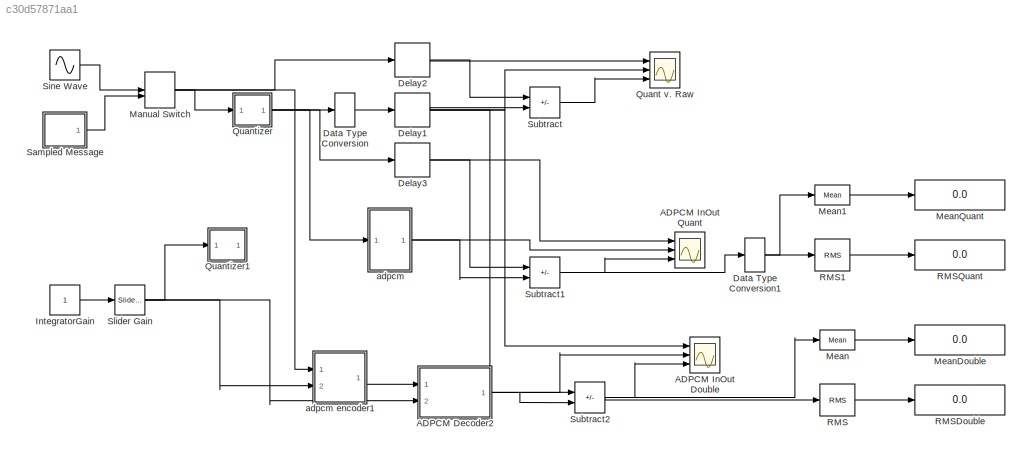
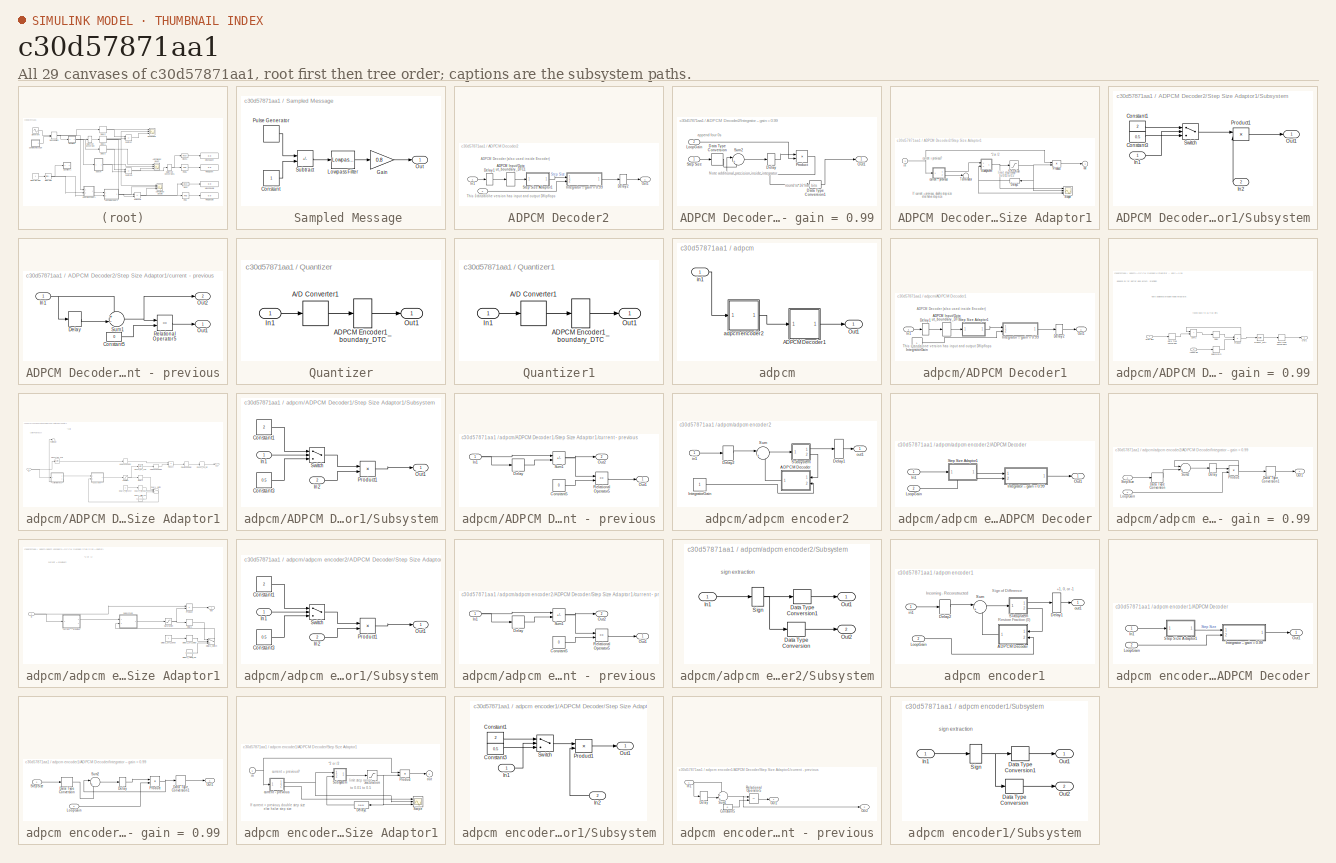
[diagram: thumbnail index - all 29 canvases of the model, root first then tree order]
MODEL slx_c30d57871aa1
KIND model
CONFIG AbsTol = auto
CONFIG EnableMultiTasking = off
CONFIG FixedStep = auto
CONFIG MaxStep = auto
CONFIG MinStep = auto
CONFIG RelTol = 1e-3
CONFIG SampleTimeConstraint = Unconstrained
CONFIG SolverName = VariableStepAuto
CONFIG StartTime = 0.0
CONFIG StopTime = 10.0
BLOCK [SubSystem]   Sampled Message
  Ports = [0, 1]
  RequestExecContextInheritance = off
BLOCK [Constant]   Sampled Message/Constant
  SampleTime = -1
BLOCK [Gain]   Sampled Message/Gain
  Gain = 0.8
  OutDataTypeStr = Inherit: Same as input
  ParamDataTypeStr = Inherit: Same as input
  SaturateOnIntegerOverflow = on
BLOCK [Reference]   Sampled Message/Lowpass Filter  REF=dspfdesign/Lowpass Filter
  Ports = [1, 1]
  SourceBlock = dspfdesign/Lowpass Filter
  SourceProductBaseCode = DS
  SourceType = dsp.LowpassFilter
BLOCK [Outport]   Sampled Message/Out
BLOCK [DiscretePulseGenerator]   Sampled Message/Pulse Generator
  Amplitude = 2
  Period = 2000
  Ports = [0, 1]
  PulseWidth = 1000
  SampleTime = 1/100000
BLOCK [Sum]   Sampled Message/Subtract
  IconShape = rectangular
  Inputs = +-
  Ports = [2, 1]
BLOCK [SubSystem] ADPCM Decoder2
  AncestorBlock = dspwvfmcdlib/ADPCM Decoder
  Ports = [2, 1]
  RequestExecContextInheritance = off
BLOCK [DataTypeConversion] ADPCM Decoder2/ADPCM Input//Output_boundary_DTC1
BLOCK [Delay] ADPCM Decoder2/Delay1
  DelayLength = 1
  InitialCondition = 0
  InputPortMap = u0
  Ports = [1, 1]
BLOCK [Delay] ADPCM Decoder2/Delay2
  DelayLength = 1
  InitialCondition = 0
  InputPortMap = u0
  InputProcessing = Columns as channels (frame based)
  Ports = [1, 1]
  UserDataPersistent = on
BLOCK [Inport] ADPCM Decoder2/In1
BLOCK [SubSystem] ADPCM Decoder2/Integrator -- gain = 0.99
  Ports = [2, 1]
  RequestExecContextInheritance = off
BLOCK [DataTypeConversion] ADPCM Decoder2/Integrator -- gain = 0.99/Data Type Conversion
  Commented = through
  OutDataTypeStr = fixdt(1,28,24)
  RndMeth = Nearest
  SaturateOnIntegerOverflow = off
BLOCK [DataTypeConversion] ADPCM Decoder2/Integrator -- gain = 0.99/Data Type Conversion1
  RndMeth = Nearest
  SaturateOnIntegerOverflow = off
BLOCK [Delay] ADPCM Decoder2/Integrator -- gain = 0.99/Delay
  DelayLength = 1
  InitialCondition = 0
  InputPortMap = u0
  InputProcessing = Columns as channels (frame based)
  Ports = [1, 1]
  UserDataPersistent = on
BLOCK [Inport] ADPCM Decoder2/Integrator -- gain = 0.99/LoopGain
  Port = 2
BLOCK [Outport] ADPCM Decoder2/Integrator -- gain = 0.99/Out1
BLOCK [Product] ADPCM Decoder2/Integrator -- gain = 0.99/Product
  OutDataTypeStr = Inherit: Same as first input
  Ports = [2, 1]
BLOCK [Inport] ADPCM Decoder2/Integrator -- gain = 0.99/Step Size
BLOCK [Sum] ADPCM Decoder2/Integrator -- gain = 0.99/Sum2
  AccumDataTypeStr = Inherit: Same as first input
  InputSameDT = on
  Inputs = |++
  OutDataTypeStr = Inherit: Same as first input
  Ports = [2, 1]
  SaturateOnIntegerOverflow = on
BLOCK [Inport] ADPCM Decoder2/LoopGain
  Port = 2
BLOCK [Outport] ADPCM Decoder2/Out1
BLOCK [SubSystem] ADPCM Decoder2/Step Size Adaptor1
  Ports = [1, 1]
  RequestExecContextInheritance = off
  ShowPortLabels = none
BLOCK [Delay] ADPCM Decoder2/Step Size Adaptor1/Delay1
  DelayLength = 1
  InitialCondition = 13/128
  InputPortMap = u0
  InputProcessing = Columns as channels (frame based)
  NameLocation = top
  Ports = [1, 1]
  UserDataPersistent = on
BLOCK [Product] ADPCM Decoder2/Step Size Adaptor1/Product
  InputSameDT = on
  OutDataTypeStr = Inherit: Same as first input
  Ports = [2, 1]
  RndMeth = Convergent
  SaturateOnIntegerOverflow = on
BLOCK [Saturate] ADPCM Decoder2/Step Size Adaptor1/Saturation
  LowerLimit = 328/65536
  UpperLimit = MaxStep
BLOCK [Scope] ADPCM Decoder2/Step Size Adaptor1/Scope
  Floating = off
  NumInputPorts = 3
  Ports = [3]
  ScopeSpecificationString = Simulink.scopes.TimeScopeBlockCfg('CurrentConfiguration', extmgr.ConfigurationSet(extmgr.Configuration('Core','General UI',true),extmgr.Configuration('Core','Source UI',true),extmgr.Configuration('Sources','WiredSimulink',true,'DataLoggingVariableName','ScopeData1'),extmgr.Configuration('Visuals','Time Domain',true,'SerializedDisplays',{struct('MinYLimReal','-2.5','MaxYLimReal','2.5','YLabelReal',...<+1466ch>
BLOCK [SubSystem] ADPCM Decoder2/Step Size Adaptor1/Subsystem
  Ports = [2, 1]
  RequestExecContextInheritance = off
BLOCK [Constant] ADPCM Decoder2/Step Size Adaptor1/Subsystem/Constant1
  OutDataTypeStr = Inherit: Inherit via back propagation
  SampleTime = -1
  Value = 2
BLOCK [Constant] ADPCM Decoder2/Step Size Adaptor1/Subsystem/Constant3
  OutDataTypeStr = Inherit: Inherit via back propagation
  SampleTime = -1
  Value = 0.5
BLOCK [Inport] ADPCM Decoder2/Step Size Adaptor1/Subsystem/In1
BLOCK [Inport] ADPCM Decoder2/Step Size Adaptor1/Subsystem/In2
  Port = 2
BLOCK [Outport] ADPCM Decoder2/Step Size Adaptor1/Subsystem/Out1
BLOCK [Product] ADPCM Decoder2/Step Size Adaptor1/Subsystem/Product1
  InputSameDT = on
  OutDataTypeStr = Inherit: Same as first input
  Ports = [2, 1]
  RndMeth = Zero
  SaturateOnIntegerOverflow = on
BLOCK [Switch] ADPCM Decoder2/Step Size Adaptor1/Subsystem/Switch
  Threshold = 1
BLOCK [Terminator] ADPCM Decoder2/Step Size Adaptor1/Terminator
BLOCK [SubSystem] ADPCM Decoder2/Step Size Adaptor1/current - previous
  Ports = [1, 2]
  RequestExecContextInheritance = off
BLOCK [Constant] ADPCM Decoder2/Step Size Adaptor1/current - previous/Constant5
  OutDataTypeStr = double
  SampleTime = 1/100000
  Value = 0
BLOCK [Delay] ADPCM Decoder2/Step Size Adaptor1/current - previous/Delay
  DelayLength = 1
  InitialCondition = 0
  InputPortMap = u0
  InputProcessing = Columns as channels (frame based)
  Ports = [1, 1]
  UserDataPersistent = on
BLOCK [Inport] ADPCM Decoder2/Step Size Adaptor1/current - previous/In1
BLOCK [Outport] ADPCM Decoder2/Step Size Adaptor1/current - previous/Out1
BLOCK [Outport] ADPCM Decoder2/Step Size Adaptor1/current - previous/Out2
  Port = 2
BLOCK [RelationalOperator] ADPCM Decoder2/Step Size Adaptor1/current - previous/Relational Operator5
  Operator = ==
  OutDataTypeStr = boolean
  Ports = [2, 1]
BLOCK [Sum] ADPCM Decoder2/Step Size Adaptor1/current - previous/Sum1
  AccumDataTypeStr = Inherit: Same as first input
  InputSameDT = on
  Inputs = +-|
  OutDataTypeStr = Inherit: Same as first input
  Ports = [2, 1]
  SaturateOnIntegerOverflow = on
BLOCK [Inport] ADPCM Decoder2/Step Size Adaptor1/in
BLOCK [Outport] ADPCM Decoder2/Step Size Adaptor1/out
  InitialOutput = 0
BLOCK [Scope] ADPCM InOut Double
  Floating = off
  NumInputPorts = 3
  Ports = [3]
  ScopeSpecificationString = Simulink.scopes.TimeScopeBlockCfg('CurrentConfiguration', extmgr.ConfigurationSet(extmgr.Configuration('Core','General UI',true),extmgr.Configuration('Core','Source UI',true),extmgr.Configuration('Sources','WiredSimulink',true,'DataLoggingLimitDataPoints',true,'DataLoggingSaveFormat','Array','DataLoggingDecimation','1','DataLoggingDecimateData',true,'DataLoggingVariableName','ScopeData2'),extmgr.C...<+3025ch>
BLOCK [Scope] ADPCM InOut Quant
  Floating = off
  NumInputPorts = 3
  Ports = [3]
  ScopeSpecificationString = Simulink.scopes.TimeScopeBlockCfg('CurrentConfiguration', extmgr.ConfigurationSet(extmgr.Configuration('Core','General UI',true),extmgr.Configuration('Core','Source UI',true),extmgr.Configuration('Sources','WiredSimulink',true,'DataLoggingLimitDataPoints',true,'DataLoggingSaveFormat','Array','DataLoggingDecimation','1','DataLoggingDecimateData',true,'DataLoggingVariableName','ScopeData1'),extmgr.C...<+3008ch>
BLOCK [DataTypeConversion] Data Type Conversion
  OutDataTypeStr = double
  RndMeth = Floor
  SaturateOnIntegerOverflow = off
BLOCK [DataTypeConversion] Data Type Conversion1
  OutDataTypeStr = double
  RndMeth = Floor
  SaturateOnIntegerOverflow = off
BLOCK [Delay] Delay1
  DelayLength = 4
  InitialCondition = 0
  InputPortMap = u0
  Ports = [1, 1]
BLOCK [Delay] Delay2
  DelayLength = 4
  InitialCondition = 0
  InputPortMap = u0
  Ports = [1, 1]
BLOCK [Delay] Delay3
  DelayLength = 4
  InitialCondition = 0
  InputPortMap = u0
  Ports = [1, 1]
BLOCK [Constant] IntegratorGain
  SampleTime = -1
BLOCK [ManualSwitch] Manual Switch
BLOCK [Reference] Mean  REF=dspstat3/Mean
  Ports = [1, 1]
  SourceBlock = dspstat3/Mean
  SourceProductBaseCode = DS
  SourceType = Mean
  UserDataPersistent = on
BLOCK [Reference] Mean1  REF=dspstat3/Mean
  Ports = [1, 1]
  SourceBlock = dspstat3/Mean
  SourceProductBaseCode = DS
  SourceType = Mean
  UserDataPersistent = on
BLOCK [Display] MeanDouble
  Decimation = 1
  Ports = [1]
BLOCK [Display] MeanQuant
  Decimation = 1
  Ports = [1]
BLOCK [Scope] Quant v. Raw
  Floating = off
  NumInputPorts = 3
  Ports = [3]
  ScopeSpecificationString = Simulink.scopes.TimeScopeBlockCfg('CurrentConfiguration', extmgr.ConfigurationSet(extmgr.Configuration('Core','General UI',true),extmgr.Configuration('Core','Source UI',true),extmgr.Configuration('Sources','WiredSimulink',true,'DataLoggingLimitDataPoints',true,'DataLoggingSaveFormat','Array','DataLoggingDecimation','1','DataLoggingDecimateData',true),extmgr.Configuration('Visuals','Time Domain',tr...<+3003ch>
BLOCK [SubSystem] Quantizer
  Ports = [1, 1]
  RequestExecContextInheritance = off
BLOCK [ZeroOrderHold] Quantizer/A//D Converter1
  Commented = through
  SampleTime = 1/10000
BLOCK [DataTypeConversion] Quantizer/ADPCM Encoder1_boundary_DTC
  OutDataTypeStr = fixdt(1,16,12)
  RndMeth = Round
BLOCK [Inport] Quantizer/In1
BLOCK [Outport] Quantizer/Out1
BLOCK [SubSystem] Quantizer1
  Ports = [1, 1]
  RequestExecContextInheritance = off
BLOCK [ZeroOrderHold] Quantizer1/A//D Converter1
  Commented = through
  SampleTime = 1/10000
BLOCK [DataTypeConversion] Quantizer1/ADPCM Encoder1_boundary_DTC
  OutDataTypeStr = fixdt(1,8,4)
  RndMeth = Round
BLOCK [Inport] Quantizer1/In1
BLOCK [Outport] Quantizer1/Out1
BLOCK [Reference] RMS  REF=dspstat3/RMS
  Ports = [1, 1]
  SourceBlock = dspstat3/RMS
  SourceProductBaseCode = DS
  SourceType = RMS
  UserDataPersistent = on
BLOCK [Reference] RMS1  REF=dspstat3/RMS
  Ports = [1, 1]
  SourceBlock = dspstat3/RMS
  SourceProductBaseCode = DS
  SourceType = RMS
  UserDataPersistent = on
BLOCK [Display] RMSDouble
  Decimation = 1
  Ports = [1]
BLOCK [Display] RMSQuant
  Decimation = 1
  Ports = [1]
BLOCK [Sin] Sine Wave
  Ports = [0, 1]
  SampleTime = 1/100000
  Samples = 1000
  SineType = Sample based
BLOCK [Reference] Slider Gain  REF=simulink/Math
Operations/Slider
Gain
  Ports = [1, 1]
  SourceBlock = simulink/Math\nOperations/Slider\nGain
  SourceProductBaseCode = SL
  SourceType = Slider Gain
BLOCK [Sum] Subtract
  IconShape = rectangular
  Inputs = +-
  Ports = [2, 1]
BLOCK [Sum] Subtract1
  IconShape = rectangular
  Inputs = +-
  Ports = [2, 1]
BLOCK [Sum] Subtract2
  IconShape = rectangular
  Inputs = +-
  Ports = [2, 1]
BLOCK [SubSystem] adpcm
  Ports = [1, 1]
  RequestExecContextInheritance = off
BLOCK [SubSystem] adpcm encoder1
  Ports = [2, 1]
  RequestExecContextInheritance = off
BLOCK [SubSystem] adpcm encoder1/ADPCM Decoder
  AncestorBlock = dspwvfmcdlib/ADPCM Decoder
  Ports = [2, 1]
  RequestExecContextInheritance = off
BLOCK [Inport] adpcm encoder1/ADPCM Decoder/In1
BLOCK [SubSystem] adpcm encoder1/ADPCM Decoder/Integrator -- gain = 0.99
  Ports = [2, 1]
  RequestExecContextInheritance = off
BLOCK [DataTypeConversion] adpcm encoder1/ADPCM Decoder/Integrator -- gain = 0.99/Data Type Conversion
  Commented = through
  OutDataTypeStr = fixdt(1,28,24)
  RndMeth = Nearest
  SaturateOnIntegerOverflow = off
BLOCK [DataTypeConversion] adpcm encoder1/ADPCM Decoder/Integrator -- gain = 0.99/Data Type Conversion1
  RndMeth = Convergent
  SaturateOnIntegerOverflow = off
BLOCK [Delay] adpcm encoder1/ADPCM Decoder/Integrator -- gain = 0.99/Delay
  DelayLength = 1
  InitialCondition = 0
  InputPortMap = u0
  InputProcessing = Columns as channels (frame based)
  Ports = [1, 1]
  UserDataPersistent = on
BLOCK [Inport] adpcm encoder1/ADPCM Decoder/Integrator -- gain = 0.99/LoopGain
  Port = 2
BLOCK [Outport] adpcm encoder1/ADPCM Decoder/Integrator -- gain = 0.99/Out1
BLOCK [Product] adpcm encoder1/ADPCM Decoder/Integrator -- gain = 0.99/Product
  OutDataTypeStr = Inherit: Same as first input
  Ports = [2, 1]
  RndMeth = Convergent
BLOCK [Inport] adpcm encoder1/ADPCM Decoder/Integrator -- gain = 0.99/StepSize
BLOCK [Sum] adpcm encoder1/ADPCM Decoder/Integrator -- gain = 0.99/Sum2
  AccumDataTypeStr = Inherit: Same as first input
  InputSameDT = on
  Inputs = |++
  OutDataTypeStr = Inherit: Same as first input
  Ports = [2, 1]
  SaturateOnIntegerOverflow = on
BLOCK [Inport] adpcm encoder1/ADPCM Decoder/LoopGain
  Port = 2
BLOCK [Outport] adpcm encoder1/ADPCM Decoder/Out1
BLOCK [SubSystem] adpcm encoder1/ADPCM Decoder/Step Size Adaptor1
  Ports = [1, 1]
  RequestExecContextInheritance = off
  ShowPortLabels = none
BLOCK [Delay] adpcm encoder1/ADPCM Decoder/Step Size Adaptor1/Delay1
  DelayLength = 1
  InitialCondition = 13/128
  InputPortMap = u0
  InputProcessing = Columns as channels (frame based)
  NameLocation = top
  Ports = [1, 1]
  UserDataPersistent = on
BLOCK [Product] adpcm encoder1/ADPCM Decoder/Step Size Adaptor1/Product
  InputSameDT = on
  OutDataTypeStr = double
  Ports = [2, 1]
  RndMeth = Convergent
  SaturateOnIntegerOverflow = on
BLOCK [Saturate] adpcm encoder1/ADPCM Decoder/Step Size Adaptor1/Saturation
  LinearizeAsGain = off
  LowerLimit = 328/65536
BLOCK [Scope] adpcm encoder1/ADPCM Decoder/Step Size Adaptor1/Scope
  Commented = on
  Floating = off
  NumInputPorts = 3
  Ports = [3]
  ScopeSpecificationString = Simulink.scopes.TimeScopeBlockCfg('CurrentConfiguration', extmgr.ConfigurationSet(extmgr.Configuration('Core','General UI',true),extmgr.Configuration('Core','Source UI',true),extmgr.Configuration('Sources','WiredSimulink',true,'DataLoggingVariableName','ScopeData1'),extmgr.Configuration('Visuals','Time Domain',true,'SerializedDisplays',{struct('MinYLimReal','-2.5','MaxYLimReal','2.5','YLabelReal',...<+1491ch>
BLOCK [SubSystem] adpcm encoder1/ADPCM Decoder/Step Size Adaptor1/Subsystem
  Ports = [2, 1]
  RequestExecContextInheritance = off
BLOCK [Constant] adpcm encoder1/ADPCM Decoder/Step Size Adaptor1/Subsystem/Constant1
  OutDataTypeStr = Inherit: Inherit via back propagation
  SampleTime = -1
  Value = 2
BLOCK [Constant] adpcm encoder1/ADPCM Decoder/Step Size Adaptor1/Subsystem/Constant3
  OutDataTypeStr = Inherit: Inherit via back propagation
  SampleTime = -1
  Value = 0.5
BLOCK [Inport] adpcm encoder1/ADPCM Decoder/Step Size Adaptor1/Subsystem/In1
BLOCK [Inport] adpcm encoder1/ADPCM Decoder/Step Size Adaptor1/Subsystem/In2
  Port = 2
BLOCK [Outport] adpcm encoder1/ADPCM Decoder/Step Size Adaptor1/Subsystem/Out1
BLOCK [Product] adpcm encoder1/ADPCM Decoder/Step Size Adaptor1/Subsystem/Product1
  InputSameDT = on
  OutDataTypeStr = Inherit: Same as first input
  Ports = [2, 1]
  RndMeth = Zero
  SaturateOnIntegerOverflow = on
BLOCK [Switch] adpcm encoder1/ADPCM Decoder/Step Size Adaptor1/Subsystem/Switch
  Threshold = 1
BLOCK [SubSystem] adpcm encoder1/ADPCM Decoder/Step Size Adaptor1/current - previous
  Ports = [1, 2]
  RequestExecContextInheritance = off
BLOCK [Constant] adpcm encoder1/ADPCM Decoder/Step Size Adaptor1/current - previous/Constant5
  OutDataTypeStr = double
  SampleTime = -1
  Value = 0
BLOCK [Delay] adpcm encoder1/ADPCM Decoder/Step Size Adaptor1/current - previous/Delay
  DelayLength = 1
  InitialCondition = 0
  InputPortMap = u0
  InputProcessing = Columns as channels (frame based)
  Ports = [1, 1]
  UserDataPersistent = on
BLOCK [Inport] adpcm encoder1/ADPCM Decoder/Step Size Adaptor1/current - previous/In1
BLOCK [Outport] adpcm encoder1/ADPCM Decoder/Step Size Adaptor1/current - previous/Out1
BLOCK [Outport] adpcm encoder1/ADPCM Decoder/Step Size Adaptor1/current - previous/Out2
  Port = 2
BLOCK [RelationalOperator] adpcm encoder1/ADPCM Decoder/Step Size Adaptor1/current - previous/Relational Operator5
  Operator = ==
  OutDataTypeStr = boolean
  Ports = [2, 1]
BLOCK [Sum] adpcm encoder1/ADPCM Decoder/Step Size Adaptor1/current - previous/Sum1
  AccumDataTypeStr = double
  InputSameDT = on
  Inputs = +-|
  OutDataTypeStr = Inherit: Same as first input
  Ports = [2, 1]
  SaturateOnIntegerOverflow = on
BLOCK [Inport] adpcm encoder1/ADPCM Decoder/Step Size Adaptor1/in
BLOCK [Outport] adpcm encoder1/ADPCM Decoder/Step Size Adaptor1/out
  InitialOutput = 0
BLOCK [Delay] adpcm encoder1/Delay1
  DelayLength = 1
  InitialCondition = 0
  InputPortMap = u0
  Ports = [1, 1]
BLOCK [Delay] adpcm encoder1/Delay2
  DelayLength = 1
  InitialCondition = 0
  InputPortMap = u0
  Ports = [1, 1]
BLOCK [Inport] adpcm encoder1/LoopGain
  Port = 2
BLOCK [SubSystem] adpcm encoder1/Subsystem
  Ports = [1, 2]
  RequestExecContextInheritance = off
BLOCK [DataTypeConversion] adpcm encoder1/Subsystem/Data Type Conversion
  LockScale = on
  OutDataTypeStr = double
  RndMeth = Nearest
BLOCK [DataTypeConversion] adpcm encoder1/Subsystem/Data Type Conversion1
  LockScale = on
  OutDataTypeStr = fixdt(1,2,0)
  RndMeth = Nearest
BLOCK [Inport] adpcm encoder1/Subsystem/In1
BLOCK [Outport] adpcm encoder1/Subsystem/Out1
BLOCK [Outport] adpcm encoder1/Subsystem/Out2
  Port = 2
BLOCK [Signum] adpcm encoder1/Subsystem/Sign
  ZeroCross = off
BLOCK [Sum] adpcm encoder1/Sum
  InputSameDT = on
  Inputs = |+-
  OutDataTypeStr = Inherit: Same as first input
  Ports = [2, 1]
  SaturateOnIntegerOverflow = on
BLOCK [Inport] adpcm encoder1/in1
BLOCK [Outport] adpcm encoder1/out1
BLOCK [SubSystem] adpcm/ADPCM Decoder1
  Ports = [1, 1]
  RequestExecContextInheritance = off
BLOCK [DataTypeConversion] adpcm/ADPCM Decoder1/ADPCM Input//Output_boundary_DTC1
BLOCK [Delay] adpcm/ADPCM Decoder1/Delay1
  InitialCondition = 0
  InputPortMap = u0
  Ports = [1, 1]
BLOCK [Delay] adpcm/ADPCM Decoder1/Delay2
  InitialCondition = 0
  InputPortMap = u0
  InputProcessing = Columns as channels (frame based)
  Ports = [1, 1]
  UserDataPersistent = on
BLOCK [Inport] adpcm/ADPCM Decoder1/In1
  OutDataTypeStr = fixdt(1, 2, 0)
  PortDimensions = 1
  SampleTime = 1e-05
BLOCK [SubSystem] adpcm/ADPCM Decoder1/Integrator -- gain = 0.99
  Ports = [2, 1]
  RequestExecContextInheritance = off
BLOCK [DataTypeConversion] adpcm/ADPCM Decoder1/Integrator -- gain = 0.99/Data Type Conversion
  OutDataTypeStr = fixdt(1, 20, 16)
  RndMeth = Nearest
  SampleTime = 1e-05
  SaturateOnIntegerOverflow = off
BLOCK [DataTypeConversion] adpcm/ADPCM Decoder1/Integrator -- gain = 0.99/Data Type Conversion1
  OutDataTypeStr = fixdt(1, 16, 12)
  RndMeth = Nearest
  SampleTime = 1e-05
  SaturateOnIntegerOverflow = off
BLOCK [Delay] adpcm/ADPCM Decoder1/Integrator -- gain = 0.99/Delay
  DelayLength = double(1)
  InitialCondition = 0
  InputPortMap = u0
  Ports = [1, 1]
  SampleTime = 1e-05
BLOCK [Inport] adpcm/ADPCM Decoder1/Integrator -- gain = 0.99/LoopGain
  OutDataTypeStr = fixdt(1, 20, 16)
  Port = 2
  PortDimensions = 1
  SampleTime = 1e-05
BLOCK [Outport] adpcm/ADPCM Decoder1/Integrator -- gain = 0.99/Out1
  SampleTime = 1e-05
BLOCK [Product] adpcm/ADPCM Decoder1/Integrator -- gain = 0.99/Product
  Inputs = **
  OutDataTypeStr = fixdt(1, 20, 16)
  Ports = [2, 1]
  RndMeth = Nearest
  SampleTime = 1e-05
BLOCK [Reference] adpcm/ADPCM Decoder1/Integrator -- gain = 0.99/Product_out1  REF=hdlmdlgenlib/Buffer
  Ports = [1, 1]
  SourceBlock = hdlmdlgenlib/Buffer
  SourceProductBaseCode = SL
  SourceType = Buffer/Wire
BLOCK [Inport] adpcm/ADPCM Decoder1/Integrator -- gain = 0.99/Step Size
  OutDataTypeStr = fixdt(1, 16, 12)
  PortDimensions = 1
  SampleTime = 1e-05
BLOCK [Sum] adpcm/ADPCM Decoder1/Integrator -- gain = 0.99/Sum2
  AccumDataTypeStr = fixdt(1, 20, 16)
  IconShape = rectangular
  OutDataTypeStr = fixdt(1, 20, 16)
  Ports = [2, 1]
  SampleTime = 1e-05
  SaturateOnIntegerOverflow = on
BLOCK [Delay] adpcm/ADPCM Decoder1/Integrator -- gain = 0.99/delayMatch
  DelayLength = double(2)
  InitialCondition = 0
  InputPortMap = u0
  Ports = [1, 1]
  SampleTime = 1e-05
BLOCK [Constant] adpcm/ADPCM Decoder1/IntegratorGain
  OutDataTypeStr = fixdt(1,20,16)
  SampleTime = -1
BLOCK [Outport] adpcm/ADPCM Decoder1/Out1
  SampleTime = 1e-05
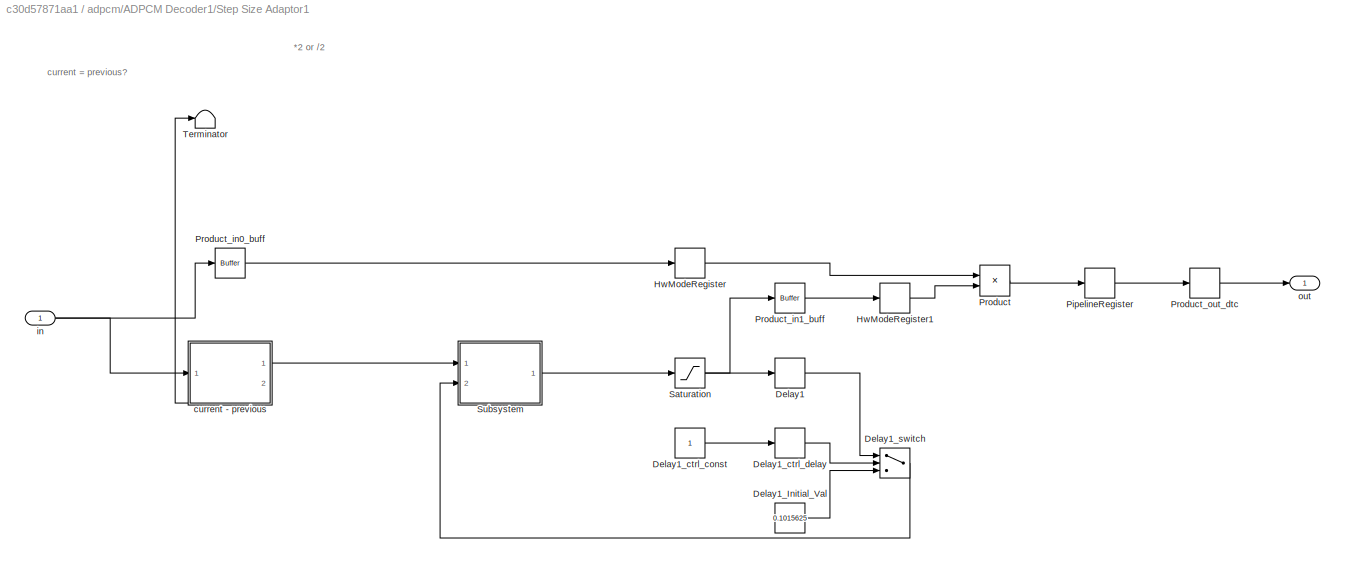
BLOCK [SubSystem] adpcm/ADPCM Decoder1/Step Size Adaptor1
  Ports = [1, 1]
  RequestExecContextInheritance = off
BLOCK [Delay] adpcm/ADPCM Decoder1/Step Size Adaptor1/Delay1
  DelayLength = double(1)
  InitialCondition = 0
  InputPortMap = u0
  Ports = [1, 1]
  SampleTime = 1e-05
BLOCK [Constant] adpcm/ADPCM Decoder1/Step Size Adaptor1/Delay1_Initial_Val
  OutDataTypeStr = fixdt(1, 16, 12)
  SampleTime = 1e-05
  Value = 0.1015625
BLOCK [Constant] adpcm/ADPCM Decoder1/Step Size Adaptor1/Delay1_ctrl_const
  OutDataTypeStr = boolean
  SampleTime = 1e-05
BLOCK [Delay] adpcm/ADPCM Decoder1/Step Size Adaptor1/Delay1_ctrl_delay
  DelayLength = double(1)
  InitialCondition = 0
  InputPortMap = u0
  Ports = [1, 1]
  SampleTime = 1e-05
BLOCK [Switch] adpcm/ADPCM Decoder1/Step Size Adaptor1/Delay1_switch
  Criteria = u2 ~= 0
  InputSameDT = off
  OutDataTypeStr = fixdt(1, 16, 12)
  SampleTime = 1e-05
  SaturateOnIntegerOverflow = off
  Threshold = double(0)
BLOCK [Delay] adpcm/ADPCM Decoder1/Step Size Adaptor1/HwModeRegister
  DelayLength = double(1)
  InitialCondition = 0
  InputPortMap = u0
  Ports = [1, 1]
  SampleTime = 1e-05
BLOCK [Delay] adpcm/ADPCM Decoder1/Step Size Adaptor1/HwModeRegister1
  DelayLength = double(1)
  InitialCondition = 0
  InputPortMap = u0
  Ports = [1, 1]
  SampleTime = 1e-05
BLOCK [Delay] adpcm/ADPCM Decoder1/Step Size Adaptor1/PipelineRegister
  DelayLength = double(1)
  InitialCondition = 0
  InputPortMap = u0
  Ports = [1, 1]
  SampleTime = 1e-05
BLOCK [Product] adpcm/ADPCM Decoder1/Step Size Adaptor1/Product
  Inputs = **
  OutDataTypeStr = fixdt(1, 32, 24)
  Ports = [2, 1]
  SampleTime = 1e-05
BLOCK [Reference] adpcm/ADPCM Decoder1/Step Size Adaptor1/Product_in0_buff  REF=hdlmdlgenlib/Buffer
  Ports = [1, 1]
  SourceBlock = hdlmdlgenlib/Buffer
  SourceProductBaseCode = SL
  SourceType = Buffer/Wire
BLOCK [Reference] adpcm/ADPCM Decoder1/Step Size Adaptor1/Product_in1_buff  REF=hdlmdlgenlib/Buffer
  Ports = [1, 1]
  SourceBlock = hdlmdlgenlib/Buffer
  SourceProductBaseCode = SL
  SourceType = Buffer/Wire
BLOCK [DataTypeConversion] adpcm/ADPCM Decoder1/Step Size Adaptor1/Product_out_dtc
  OutDataTypeStr = fixdt(1, 16, 12)
  RndMeth = Convergent
  SampleTime = 1e-05
BLOCK [Saturate] adpcm/ADPCM Decoder1/Step Size Adaptor1/Saturation
  LowerLimit = fi(0,1,16,12,"hex","0015")
  OutDataTypeStr = fixdt(1, 16, 12)
  SampleTime = 1e-05
  UpperLimit = fi(0,1,16,12,"hex","0800")
BLOCK [SubSystem] adpcm/ADPCM Decoder1/Step Size Adaptor1/Subsystem
  Ports = [2, 1]
  RequestExecContextInheritance = off
BLOCK [Constant] adpcm/ADPCM Decoder1/Step Size Adaptor1/Subsystem/Constant1
  OutDataTypeStr = fixdt(1, 16, 12)
  SampleTime = 1e-05
  Value = 2
BLOCK [Constant] adpcm/ADPCM Decoder1/Step Size Adaptor1/Subsystem/Constant3
  OutDataTypeStr = fixdt(1, 16, 12)
  SampleTime = 1e-05
  Value = 0.5
BLOCK [Inport] adpcm/ADPCM Decoder1/Step Size Adaptor1/Subsystem/In1
  OutDataTypeStr = boolean
  PortDimensions = 1
  SampleTime = 1e-05
BLOCK [Inport] adpcm/ADPCM Decoder1/Step Size Adaptor1/Subsystem/In2
  OutDataTypeStr = fixdt(1, 16, 12)
  Port = 2
  PortDimensions = 1
  SampleTime = 1e-05
BLOCK [Outport] adpcm/ADPCM Decoder1/Step Size Adaptor1/Subsystem/Out1
  SampleTime = 1e-05
BLOCK [Product] adpcm/ADPCM Decoder1/Step Size Adaptor1/Subsystem/Product1
  Inputs = **
  OutDataTypeStr = fixdt(1, 16, 12)
  Ports = [2, 1]
  RndMeth = Zero
  SampleTime = 1e-05
  SaturateOnIntegerOverflow = on
BLOCK [Switch] adpcm/ADPCM Decoder1/Step Size Adaptor1/Subsystem/Switch
  InputSameDT = off
  OutDataTypeStr = fixdt(1, 16, 12)
  SampleTime = 1e-05
  Threshold = double(1)
BLOCK [Terminator] adpcm/ADPCM Decoder1/Step Size Adaptor1/Terminator
BLOCK [SubSystem] adpcm/ADPCM Decoder1/Step Size Adaptor1/current - previous
  Ports = [1, 2]
  RequestExecContextInheritance = off
BLOCK [Constant] adpcm/ADPCM Decoder1/Step Size Adaptor1/current - previous/Constant5
  OutDataTypeStr = fixdt(1, 16, 12)
  SampleTime = 1e-05
  Value = 0
BLOCK [Delay] adpcm/ADPCM Decoder1/Step Size Adaptor1/current - previous/Delay
  DelayLength = double(1)
  InitialCondition = 0
  InputPortMap = u0
  Ports = [1, 1]
  SampleTime = 1e-05
BLOCK [Inport] adpcm/ADPCM Decoder1/Step Size Adaptor1/current - previous/In1
  OutDataTypeStr = fixdt(1, 16, 12)
  PortDimensions = 1
  SampleTime = 1e-05
BLOCK [Outport] adpcm/ADPCM Decoder1/Step Size Adaptor1/current - previous/Out1
  SampleTime = 1e-05
BLOCK [Outport] adpcm/ADPCM Decoder1/Step Size Adaptor1/current - previous/Out2
  Port = 2
  SampleTime = 1e-05
BLOCK [RelationalOperator] adpcm/ADPCM Decoder1/Step Size Adaptor1/current - previous/Relational Operator5
  Operator = ==
  OutDataTypeStr = boolean
  Ports = [2, 1]
  SampleTime = 1e-05
BLOCK [Sum] adpcm/ADPCM Decoder1/Step Size Adaptor1/current - previous/Sum1
  AccumDataTypeStr = fixdt(1, 16, 12)
  IconShape = rectangular
  Inputs = +-
  OutDataTypeStr = fixdt(1, 16, 12)
  Ports = [2, 1]
  SampleTime = 1e-05
  SaturateOnIntegerOverflow = on
BLOCK [Inport] adpcm/ADPCM Decoder1/Step Size Adaptor1/in
  OutDataTypeStr = fixdt(1, 16, 12)
  PortDimensions = 1
  SampleTime = 1e-05
BLOCK [Outport] adpcm/ADPCM Decoder1/Step Size Adaptor1/out
  InitialOutput = 0
  SampleTime = 1e-05
BLOCK [Outport] adpcm/Out1
  SampleTime = 1e-05
BLOCK [SubSystem] adpcm/adpcm encoder2
  Ports = [1, 1]
  RequestExecContextInheritance = off
BLOCK [SubSystem] adpcm/adpcm encoder2/ADPCM Decoder
  Ports = [2, 1]
  RequestExecContextInheritance = off
BLOCK [Inport] adpcm/adpcm encoder2/ADPCM Decoder/In1
  OutDataTypeStr = fixdt(1, 16, 12)
  PortDimensions = 1
  SampleTime = 1e-05
BLOCK [SubSystem] adpcm/adpcm encoder2/ADPCM Decoder/Integrator -- gain = 0.99
  Ports = [2, 1]
  RequestExecContextInheritance = off
BLOCK [DataTypeConversion] adpcm/adpcm encoder2/ADPCM Decoder/Integrator -- gain = 0.99/Data Type Conversion
  OutDataTypeStr = fixdt(1,20,16)
  RndMeth = Nearest
  SaturateOnIntegerOverflow = off
BLOCK [DataTypeConversion] adpcm/adpcm encoder2/ADPCM Decoder/Integrator -- gain = 0.99/Data Type Conversion1
  RndMeth = Convergent
  SaturateOnIntegerOverflow = off
BLOCK [Delay] adpcm/adpcm encoder2/ADPCM Decoder/Integrator -- gain = 0.99/Delay
  DelayLength = 1
  InitialCondition = 0
  InputPortMap = u0
  InputProcessing = Columns as channels (frame based)
  Ports = [1, 1]
  UserDataPersistent = on
BLOCK [Inport] adpcm/adpcm encoder2/ADPCM Decoder/Integrator -- gain = 0.99/LoopGain
  OutDataTypeStr = fixdt(1, 20, 16)
  Port = 2
  PortDimensions = 1
  SampleTime = 1e-05
BLOCK [Outport] adpcm/adpcm encoder2/ADPCM Decoder/Integrator -- gain = 0.99/Out1
  SampleTime = 1e-05
BLOCK [Product] adpcm/adpcm encoder2/ADPCM Decoder/Integrator -- gain = 0.99/Product
  OutDataTypeStr = Inherit: Same as first input
  Ports = [2, 1]
  RndMeth = Convergent
BLOCK [Inport] adpcm/adpcm encoder2/ADPCM Decoder/Integrator -- gain = 0.99/StepSize
  OutDataTypeStr = fixdt(1, 16, 12)
  PortDimensions = 1
  SampleTime = 1e-05
BLOCK [Sum] adpcm/adpcm encoder2/ADPCM Decoder/Integrator -- gain = 0.99/Sum2
  AccumDataTypeStr = Inherit: Same as first input
  InputSameDT = on
  Inputs = |++
  OutDataTypeStr = Inherit: Same as first input
  Ports = [2, 1]
  SaturateOnIntegerOverflow = on
BLOCK [Inport] adpcm/adpcm encoder2/ADPCM Decoder/LoopGain
  OutDataTypeStr = fixdt(1, 20, 16)
  Port = 2
  PortDimensions = 1
  SampleTime = 1e-05
BLOCK [Outport] adpcm/adpcm encoder2/ADPCM Decoder/Out1
  SampleTime = 1e-05
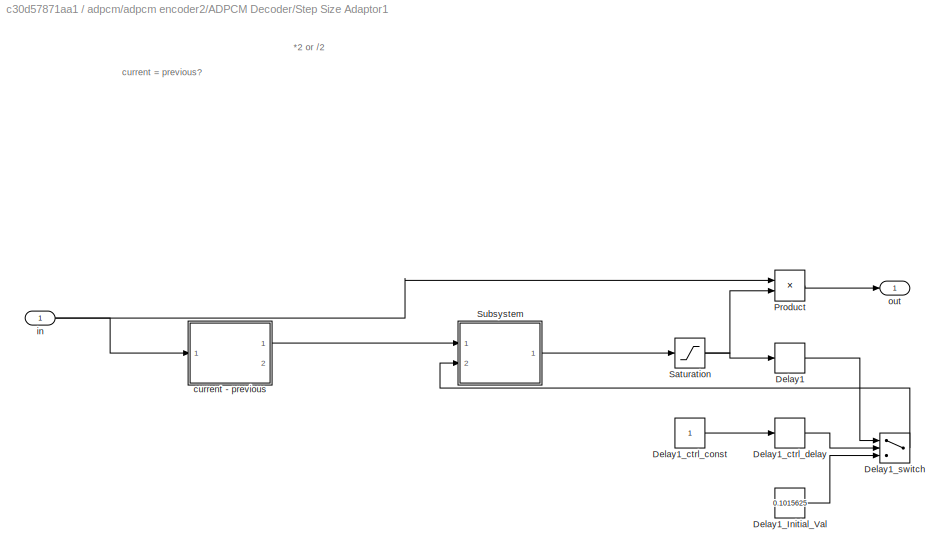
BLOCK [SubSystem] adpcm/adpcm encoder2/ADPCM Decoder/Step Size Adaptor1
  Ports = [1, 1]
  RequestExecContextInheritance = off
BLOCK [Delay] adpcm/adpcm encoder2/ADPCM Decoder/Step Size Adaptor1/Delay1
  DelayLength = double(1)
  InitialCondition = 0
  InputPortMap = u0
  Ports = [1, 1]
  SampleTime = 1e-05
BLOCK [Constant] adpcm/adpcm encoder2/ADPCM Decoder/Step Size Adaptor1/Delay1_Initial_Val
  OutDataTypeStr = fixdt(1, 16, 12)
  SampleTime = 1e-05
  Value = 0.1015625
BLOCK [Constant] adpcm/adpcm encoder2/ADPCM Decoder/Step Size Adaptor1/Delay1_ctrl_const
  OutDataTypeStr = boolean
  SampleTime = 1e-05
BLOCK [Delay] adpcm/adpcm encoder2/ADPCM Decoder/Step Size Adaptor1/Delay1_ctrl_delay
  DelayLength = double(1)
  InitialCondition = 0
  InputPortMap = u0
  Ports = [1, 1]
  SampleTime = 1e-05
BLOCK [Switch] adpcm/adpcm encoder2/ADPCM Decoder/Step Size Adaptor1/Delay1_switch
  Criteria = u2 ~= 0
  InputSameDT = off
  OutDataTypeStr = fixdt(1, 16, 12)
  SampleTime = 1e-05
  SaturateOnIntegerOverflow = off
  Threshold = double(0)
BLOCK [Product] adpcm/adpcm encoder2/ADPCM Decoder/Step Size Adaptor1/Product
  Inputs = **
  OutDataTypeStr = fixdt(1, 16, 12)
  Ports = [2, 1]
  RndMeth = Convergent
  SampleTime = 1e-05
  SaturateOnIntegerOverflow = on
BLOCK [Saturate] adpcm/adpcm encoder2/ADPCM Decoder/Step Size Adaptor1/Saturation
  LowerLimit = fi(0,1,16,12,"hex","0015")
  OutDataTypeStr = fixdt(1, 16, 12)
  SampleTime = 1e-05
  UpperLimit = fi(0,1,16,12,"hex","0800")
BLOCK [SubSystem] adpcm/adpcm encoder2/ADPCM Decoder/Step Size Adaptor1/Subsystem
  Ports = [2, 1]
  RequestExecContextInheritance = off
BLOCK [Constant] adpcm/adpcm encoder2/ADPCM Decoder/Step Size Adaptor1/Subsystem/Constant1
  OutDataTypeStr = fixdt(1, 16, 12)
  SampleTime = 1e-05
  Value = 2
BLOCK [Constant] adpcm/adpcm encoder2/ADPCM Decoder/Step Size Adaptor1/Subsystem/Constant3
  OutDataTypeStr = fixdt(1, 16, 12)
  SampleTime = 1e-05
  Value = 0.5
BLOCK [Inport] adpcm/adpcm encoder2/ADPCM Decoder/Step Size Adaptor1/Subsystem/In1
  OutDataTypeStr = boolean
  PortDimensions = 1
  SampleTime = 1e-05
BLOCK [Inport] adpcm/adpcm encoder2/ADPCM Decoder/Step Size Adaptor1/Subsystem/In2
  OutDataTypeStr = fixdt(1, 16, 12)
  Port = 2
  PortDimensions = 1
  SampleTime = 1e-05
BLOCK [Outport] adpcm/adpcm encoder2/ADPCM Decoder/Step Size Adaptor1/Subsystem/Out1
  SampleTime = 1e-05
BLOCK [Product] adpcm/adpcm encoder2/ADPCM Decoder/Step Size Adaptor1/Subsystem/Product1
  Inputs = **
  OutDataTypeStr = fixdt(1, 16, 12)
  Ports = [2, 1]
  RndMeth = Zero
  SampleTime = 1e-05
  SaturateOnIntegerOverflow = on
BLOCK [Switch] adpcm/adpcm encoder2/ADPCM Decoder/Step Size Adaptor1/Subsystem/Switch
  InputSameDT = off
  OutDataTypeStr = fixdt(1, 16, 12)
  SampleTime = 1e-05
  Threshold = double(1)
BLOCK [SubSystem] adpcm/adpcm encoder2/ADPCM Decoder/Step Size Adaptor1/current - previous
  Ports = [1, 2]
  RequestExecContextInheritance = off
BLOCK [Constant] adpcm/adpcm encoder2/ADPCM Decoder/Step Size Adaptor1/current - previous/Constant5
  OutDataTypeStr = fixdt(1, 16, 12)
  SampleTime = 1e-05
  Value = 0
BLOCK [Delay] adpcm/adpcm encoder2/ADPCM Decoder/Step Size Adaptor1/current - previous/Delay
  DelayLength = double(1)
  InitialCondition = 0
  InputPortMap = u0
  Ports = [1, 1]
  SampleTime = 1e-05
BLOCK [Inport] adpcm/adpcm encoder2/ADPCM Decoder/Step Size Adaptor1/current - previous/In1
  OutDataTypeStr = fixdt(1, 16, 12)
  PortDimensions = 1
  SampleTime = 1e-05
BLOCK [Outport] adpcm/adpcm encoder2/ADPCM Decoder/Step Size Adaptor1/current - previous/Out1
  SampleTime = 1e-05
BLOCK [Outport] adpcm/adpcm encoder2/ADPCM Decoder/Step Size Adaptor1/current - previous/Out2
  Port = 2
  SampleTime = 1e-05
BLOCK [RelationalOperator] adpcm/adpcm encoder2/ADPCM Decoder/Step Size Adaptor1/current - previous/Relational Operator5
  Operator = ==
  OutDataTypeStr = boolean
  Ports = [2, 1]
  SampleTime = 1e-05
BLOCK [Sum] adpcm/adpcm encoder2/ADPCM Decoder/Step Size Adaptor1/current - previous/Sum1
  AccumDataTypeStr = fixdt(1, 16, 12)
  IconShape = rectangular
  Inputs = +-
  OutDataTypeStr = fixdt(1, 16, 12)
  Ports = [2, 1]
  SampleTime = 1e-05
  SaturateOnIntegerOverflow = on
BLOCK [Inport] adpcm/adpcm encoder2/ADPCM Decoder/Step Size Adaptor1/in
  OutDataTypeStr = fixdt(1, 16, 12)
  PortDimensions = 1
  SampleTime = 1e-05
BLOCK [Outport] adpcm/adpcm encoder2/ADPCM Decoder/Step Size Adaptor1/out
  InitialOutput = 0
  SampleTime = 1e-05
BLOCK [Delay] adpcm/adpcm encoder2/Delay1
  InitialCondition = 0
  InputPortMap = u0
  Ports = [1, 1]
BLOCK [Delay] adpcm/adpcm encoder2/Delay2
  InitialCondition = 0
  InputPortMap = u0
  Ports = [1, 1]
BLOCK [Constant] adpcm/adpcm encoder2/IntegratorGain
  OutDataTypeStr = fixdt(1,20,16)
  SampleTime = -1
BLOCK [SubSystem] adpcm/adpcm encoder2/Subsystem
  Ports = [1, 2]
  RequestExecContextInheritance = off
BLOCK [DataTypeConversion] adpcm/adpcm encoder2/Subsystem/Data Type Conversion
  LockScale = on
  OutDataTypeStr = fixdt(1,16,12)
  RndMeth = Nearest
BLOCK [DataTypeConversion] adpcm/adpcm encoder2/Subsystem/Data Type Conversion1
  LockScale = on
  OutDataTypeStr = fixdt(1,2,0)
  RndMeth = Nearest
BLOCK [Inport] adpcm/adpcm encoder2/Subsystem/In1
  OutDataTypeStr = fixdt(1, 16, 12)
  PortDimensions = 1
  SampleTime = 1e-05
BLOCK [Outport] adpcm/adpcm encoder2/Subsystem/Out1
  SampleTime = 1e-05
BLOCK [Outport] adpcm/adpcm encoder2/Subsystem/Out2
  Port = 2
  SampleTime = 1e-05
BLOCK [Signum] adpcm/adpcm encoder2/Subsystem/Sign
  ZeroCross = off
BLOCK [Sum] adpcm/adpcm encoder2/Sum
  InputSameDT = on
  Inputs = |+-
  OutDataTypeStr = Inherit: Same as first input
  Ports = [2, 1]
  SaturateOnIntegerOverflow = on
BLOCK [Inport] adpcm/adpcm encoder2/in1
  OutDataTypeStr = fixdt(1, 16, 12)
  PortDimensions = 1
  SampleTime = 1e-05
BLOCK [Outport] adpcm/adpcm encoder2/out1
  SampleTime = 1e-05
BLOCK [Inport] adpcm/in1
  OutDataTypeStr = fixdt(1, 16, 12)
  PortDimensions = 1
  SampleTime = 1e-05
ANNOTATION ADPCM Decoder2: ADPCM Decoder (also used inside Encoder)
ANNOTATION ADPCM Decoder2: This standalone version has input and output Dflipflops
ANNOTATION ADPCM Decoder2/Integrator -- gain = 0.99: Note additional precision inside integrator.
ANNOTATION ADPCM Decoder2/Integrator -- gain = 0.99: append four 0s
ANNOTATION ADPCM Decoder2/Integrator -- gain = 0.99: round to 16 frac bits
ANNOTATION ADPCM Decoder2/Step Size Adaptor1: *2 or /2
ANNOTATION ADPCM Decoder2/Step Size Adaptor1: If current = previous, double step size else halve step size
ANNOTATION ADPCM Decoder2/Step Size Adaptor1: current = previous?
ANNOTATION ADPCM Decoder2/Step Size Adaptor1: limit step range to 0.01 to 0.5
ANNOTATION adpcm encoder1: Restore Fraction (0)
ANNOTATION adpcm encoder1: +1, 0, or -1
ANNOTATION adpcm encoder1: Incoming - Reconstructed
ANNOTATION adpcm encoder1: Sign of Difference
ANNOTATION adpcm encoder1/ADPCM Decoder/Step Size Adaptor1: *2 or /2
ANNOTATION adpcm encoder1/ADPCM Decoder/Step Size Adaptor1: If current = previous, double step size else halve step size
ANNOTATION adpcm encoder1/ADPCM Decoder/Step Size Adaptor1: current = previous?
ANNOTATION adpcm encoder1/ADPCM Decoder/Step Size Adaptor1: limit step range to 0.01 to 0.5
ANNOTATION adpcm encoder1/Subsystem: sign extraction
ANNOTATION adpcm/ADPCM Decoder1: ADPCM Decoder (also used inside Encoder)
ANNOTATION adpcm/ADPCM Decoder1: This standalone version has input and output Dflipflops
ANNOTATION adpcm/ADPCM Decoder1/Integrator -- gain = 0.99: Note additional precision inside integrator.
ANNOTATION adpcm/ADPCM Decoder1/Integrator -- gain = 0.99: append 0s for better loop accum. precision
ANNOTATION adpcm/ADPCM Decoder1/Integrator -- gain = 0.99: round back to 16 frac bits
ANNOTATION adpcm/ADPCM Decoder1/Step Size Adaptor1: *2 or /2
ANNOTATION adpcm/ADPCM Decoder1/Step Size Adaptor1: current = previous?
ANNOTATION adpcm/adpcm encoder2/ADPCM Decoder/Step Size Adaptor1: *2 or /2
ANNOTATION adpcm/adpcm encoder2/ADPCM Decoder/Step Size Adaptor1: current = previous?
ANNOTATION adpcm/adpcm encoder2/Subsystem: sign extraction
LINE   Sampled Message/Constant:1 ->   Sampled Message/Subtract:2
LINE   Sampled Message/Gain:1 ->   Sampled Message/Out:1
LINE   Sampled Message/Lowpass Filter:1 ->   Sampled Message/Gain:1
LINE   Sampled Message/Pulse Generator:1 ->   Sampled Message/Subtract:1
LINE   Sampled Message/Subtract:1 ->   Sampled Message/Lowpass Filter:1
LINE   Sampled Message:1 -> Manual Switch:2
NET ADPCM Decoder2:1 -> ADPCM InOut Double:2, Subtract2:2
NET Data Type Conversion1:1 -> Mean1:1, RMS1:1
LINE Data Type Conversion:1 -> Delay1:1
NET Delay1:1 -> ADPCM InOut Double:1, Quant v. Raw:2, Subtract2:1, Subtract:2
NET Delay2:1 -> Quant v. Raw:1, Subtract:1
NET Delay3:1 -> ADPCM InOut Quant:1, Subtract1:1
LINE IntegratorGain:1 -> Slider Gain:1
NET Manual Switch:1 -> Delay2:1, Quantizer:1, adpcm encoder1:1
LINE Mean1:1 -> MeanQuant:1
LINE Mean:1 -> MeanDouble:1
LINE Quantizer/A//D Converter1:1 -> Quantizer/ADPCM Encoder1_boundary_DTC:1
LINE Quantizer/ADPCM Encoder1_boundary_DTC:1 -> Quantizer/Out1:1
LINE Quantizer/In1:1 -> Quantizer/A//D Converter1:1
LINE Quantizer1/A//D Converter1:1 -> Quantizer1/ADPCM Encoder1_boundary_DTC:1
LINE Quantizer1/ADPCM Encoder1_boundary_DTC:1 -> Quantizer1/Out1:1
LINE Quantizer1/In1:1 -> Quantizer1/A//D Converter1:1
NET Quantizer:1 -> Data Type Conversion:1, Delay3:1, adpcm:1
LINE RMS1:1 -> RMSQuant:1
LINE RMS:1 -> RMSDouble:1
LINE Sine Wave:1 -> Manual Switch:1
NET Slider Gain:1 -> ADPCM Decoder2:2, Quantizer1:1, adpcm encoder1:2
NET Subtract1:1 -> ADPCM InOut Quant:3, Data Type Conversion1:1
NET Subtract2:1 -> ADPCM InOut Double:3, Mean:1, RMS:1
LINE Subtract:1 -> Quant v. Raw:3
LINE adpcm encoder1/ADPCM Decoder:1 -> adpcm encoder1/Sum:2
LINE adpcm encoder1/Delay1:1 -> adpcm encoder1/out1:1
LINE adpcm encoder1/Delay2:1 -> adpcm encoder1/Sum:1
LINE adpcm encoder1/LoopGain:1 -> adpcm encoder1/ADPCM Decoder:2
LINE adpcm encoder1/Subsystem/Data Type Conversion1:1 -> adpcm encoder1/Subsystem/Out1:1
LINE adpcm encoder1/Subsystem/Data Type Conversion:1 -> adpcm encoder1/Subsystem/Out2:1
LINE adpcm encoder1/Subsystem/In1:1 -> adpcm encoder1/Subsystem/Sign:1
NET adpcm encoder1/Subsystem/Sign:1 -> adpcm encoder1/Subsystem/Data Type Conversion1:1, adpcm encoder1/Subsystem/Data Type Conversion:1
LINE adpcm encoder1/Subsystem:1 -> adpcm encoder1/Delay1:1
LINE adpcm encoder1/Subsystem:2 -> adpcm encoder1/ADPCM Decoder:1
LINE adpcm encoder1/Sum:1 -> adpcm encoder1/Subsystem:1
LINE adpcm encoder1/in1:1 -> adpcm encoder1/Delay2:1
LINE adpcm encoder1:1 -> ADPCM Decoder2:1
LINE adpcm/ADPCM Decoder1/ADPCM Input//Output_boundary_DTC1:1 -> adpcm/ADPCM Decoder1/Step Size Adaptor1:1
LINE adpcm/ADPCM Decoder1/Delay1:1 -> adpcm/ADPCM Decoder1/ADPCM Input//Output_boundary_DTC1:1
LINE adpcm/ADPCM Decoder1/Delay2:1 -> adpcm/ADPCM Decoder1/Out1:1
LINE adpcm/ADPCM Decoder1/In1:1 -> adpcm/ADPCM Decoder1/Delay1:1
LINE adpcm/ADPCM Decoder1/Integrator -- gain = 0.99/Data Type Conversion1:1 -> adpcm/ADPCM Decoder1/Integrator -- gain = 0.99/Out1:1
LINE adpcm/ADPCM Decoder1/Integrator -- gain = 0.99/Data Type Conversion:1 -> adpcm/ADPCM Decoder1/Integrator -- gain = 0.99/Sum2:2
LINE adpcm/ADPCM Decoder1/Integrator -- gain = 0.99/Delay:1 -> adpcm/ADPCM Decoder1/Integrator -- gain = 0.99/Product:1
LINE adpcm/ADPCM Decoder1/Integrator -- gain = 0.99/LoopGain:1 -> adpcm/ADPCM Decoder1/Integrator -- gain = 0.99/delayMatch:1
NET adpcm/ADPCM Decoder1/Integrator -- gain = 0.99/Product:1 -> adpcm/ADPCM Decoder1/Integrator -- gain = 0.99/Product_out1:1, adpcm/ADPCM Decoder1/Integrator -- gain = 0.99/Sum2:1
LINE adpcm/ADPCM Decoder1/Integrator -- gain = 0.99/Product_out1:1 -> adpcm/ADPCM Decoder1/Integrator -- gain = 0.99/Data Type Conversion1:1
LINE adpcm/ADPCM Decoder1/Integrator -- gain = 0.99/Step Size:1 -> adpcm/ADPCM Decoder1/Integrator -- gain = 0.99/Data Type Conversion:1
LINE adpcm/ADPCM Decoder1/Integrator -- gain = 0.99/Sum2:1 -> adpcm/ADPCM Decoder1/Integrator -- gain = 0.99/Delay:1
LINE adpcm/ADPCM Decoder1/Integrator -- gain = 0.99/delayMatch:1 -> adpcm/ADPCM Decoder1/Integrator -- gain = 0.99/Product:2
LINE adpcm/ADPCM Decoder1/Integrator -- gain = 0.99:1 -> adpcm/ADPCM Decoder1/Delay2:1
LINE adpcm/ADPCM Decoder1/IntegratorGain:1 -> adpcm/ADPCM Decoder1/Integrator -- gain = 0.99:2
LINE adpcm/ADPCM Decoder1/Step Size Adaptor1/Delay1:1 -> adpcm/ADPCM Decoder1/Step Size Adaptor1/Delay1_switch:1
LINE adpcm/ADPCM Decoder1/Step Size Adaptor1/Delay1_Initial_Val:1 -> adpcm/ADPCM Decoder1/Step Size Adaptor1/Delay1_switch:3
LINE adpcm/ADPCM Decoder1/Step Size Adaptor1/Delay1_ctrl_const:1 -> adpcm/ADPCM Decoder1/Step Size Adaptor1/Delay1_ctrl_delay:1
LINE adpcm/ADPCM Decoder1/Step Size Adaptor1/Delay1_ctrl_delay:1 -> adpcm/ADPCM Decoder1/Step Size Adaptor1/Delay1_switch:2
LINE adpcm/ADPCM Decoder1/Step Size Adaptor1/Delay1_switch:1 -> adpcm/ADPCM Decoder1/Step Size Adaptor1/Subsystem:2
LINE adpcm/ADPCM Decoder1/Step Size Adaptor1/HwModeRegister1:1 -> adpcm/ADPCM Decoder1/Step Size Adaptor1/Product:2
LINE adpcm/ADPCM Decoder1/Step Size Adaptor1/HwModeRegister:1 -> adpcm/ADPCM Decoder1/Step Size Adaptor1/Product:1
LINE adpcm/ADPCM Decoder1/Step Size Adaptor1/PipelineRegister:1 -> adpcm/ADPCM Decoder1/Step Size Adaptor1/Product_out_dtc:1
LINE adpcm/ADPCM Decoder1/Step Size Adaptor1/Product:1 -> adpcm/ADPCM Decoder1/Step Size Adaptor1/PipelineRegister:1
LINE adpcm/ADPCM Decoder1/Step Size Adaptor1/Product_in0_buff:1 -> adpcm/ADPCM Decoder1/Step Size Adaptor1/HwModeRegister:1
LINE adpcm/ADPCM Decoder1/Step Size Adaptor1/Product_in1_buff:1 -> adpcm/ADPCM Decoder1/Step Size Adaptor1/HwModeRegister1:1
LINE adpcm/ADPCM Decoder1/Step Size Adaptor1/Product_out_dtc:1 -> adpcm/ADPCM Decoder1/Step Size Adaptor1/out:1
NET adpcm/ADPCM Decoder1/Step Size Adaptor1/Saturation:1 -> adpcm/ADPCM Decoder1/Step Size Adaptor1/Delay1:1, adpcm/ADPCM Decoder1/Step Size Adaptor1/Product_in1_buff:1
LINE adpcm/ADPCM Decoder1/Step Size Adaptor1/Subsystem/Constant1:1 -> adpcm/ADPCM Decoder1/Step Size Adaptor1/Subsystem/Switch:1
LINE adpcm/ADPCM Decoder1/Step Size Adaptor1/Subsystem/Constant3:1 -> adpcm/ADPCM Decoder1/Step Size Adaptor1/Subsystem/Switch:3
LINE adpcm/ADPCM Decoder1/Step Size Adaptor1/Subsystem/In1:1 -> adpcm/ADPCM Decoder1/Step Size Adaptor1/Subsystem/Switch:2
LINE adpcm/ADPCM Decoder1/Step Size Adaptor1/Subsystem/In2:1 -> adpcm/ADPCM Decoder1/Step Size Adaptor1/Subsystem/Product1:2
LINE adpcm/ADPCM Decoder1/Step Size Adaptor1/Subsystem/Product1:1 -> adpcm/ADPCM Decoder1/Step Size Adaptor1/Subsystem/Out1:1
LINE adpcm/ADPCM Decoder1/Step Size Adaptor1/Subsystem/Switch:1 -> adpcm/ADPCM Decoder1/Step Size Adaptor1/Subsystem/Product1:1
LINE adpcm/ADPCM Decoder1/Step Size Adaptor1/Subsystem:1 -> adpcm/ADPCM Decoder1/Step Size Adaptor1/Saturation:1
LINE adpcm/ADPCM Decoder1/Step Size Adaptor1/current - previous/Constant5:1 -> adpcm/ADPCM Decoder1/Step Size Adaptor1/current - previous/Relational Operator5:2
LINE adpcm/ADPCM Decoder1/Step Size Adaptor1/current - previous/Delay:1 -> adpcm/ADPCM Decoder1/Step Size Adaptor1/current - previous/Sum1:2
NET adpcm/ADPCM Decoder1/Step Size Adaptor1/current - previous/In1:1 -> adpcm/ADPCM Decoder1/Step Size Adaptor1/current - previous/Delay:1, adpcm/ADPCM Decoder1/Step Size Adaptor1/current - previous/Sum1:1
LINE adpcm/ADPCM Decoder1/Step Size Adaptor1/current - previous/Relational Operator5:1 -> adpcm/ADPCM Decoder1/Step Size Adaptor1/current - previous/Out1:1
NET adpcm/ADPCM Decoder1/Step Size Adaptor1/current - previous/Sum1:1 -> adpcm/ADPCM Decoder1/Step Size Adaptor1/current - previous/Out2:1, adpcm/ADPCM Decoder1/Step Size Adaptor1/current - previous/Relational Operator5:1
LINE adpcm/ADPCM Decoder1/Step Size Adaptor1/current - previous:1 -> adpcm/ADPCM Decoder1/Step Size Adaptor1/Subsystem:1
LINE adpcm/ADPCM Decoder1/Step Size Adaptor1/current - previous:2 -> adpcm/ADPCM Decoder1/Step Size Adaptor1/Terminator:1
NET adpcm/ADPCM Decoder1/Step Size Adaptor1/in:1 -> adpcm/ADPCM Decoder1/Step Size Adaptor1/Product_in0_buff:1, adpcm/ADPCM Decoder1/Step Size Adaptor1/current - previous:1
LINE adpcm/ADPCM Decoder1/Step Size Adaptor1:1 -> adpcm/ADPCM Decoder1/Integrator -- gain = 0.99:1
LINE adpcm/ADPCM Decoder1:1 -> adpcm/Out1:1
LINE adpcm/adpcm encoder2/ADPCM Decoder/In1:1 -> adpcm/adpcm encoder2/ADPCM Decoder/Step Size Adaptor1:1
LINE adpcm/adpcm encoder2/ADPCM Decoder/Integrator -- gain = 0.99/Data Type Conversion1:1 -> adpcm/adpcm encoder2/ADPCM Decoder/Integrator -- gain = 0.99/Out1:1
LINE adpcm/adpcm encoder2/ADPCM Decoder/Integrator -- gain = 0.99/Data Type Conversion:1 -> adpcm/adpcm encoder2/ADPCM Decoder/Integrator -- gain = 0.99/Sum2:2
LINE adpcm/adpcm encoder2/ADPCM Decoder/Integrator -- gain = 0.99/Delay:1 -> adpcm/adpcm encoder2/ADPCM Decoder/Integrator -- gain = 0.99/Product:1
LINE adpcm/adpcm encoder2/ADPCM Decoder/Integrator -- gain = 0.99/LoopGain:1 -> adpcm/adpcm encoder2/ADPCM Decoder/Integrator -- gain = 0.99/Product:2
NET adpcm/adpcm encoder2/ADPCM Decoder/Integrator -- gain = 0.99/Product:1 -> adpcm/adpcm encoder2/ADPCM Decoder/Integrator -- gain = 0.99/Data Type Conversion1:1, adpcm/adpcm encoder2/ADPCM Decoder/Integrator -- gain = 0.99/Sum2:1
LINE adpcm/adpcm encoder2/ADPCM Decoder/Integrator -- gain = 0.99/StepSize:1 -> adpcm/adpcm encoder2/ADPCM Decoder/Integrator -- gain = 0.99/Data Type Conversion:1
LINE adpcm/adpcm encoder2/ADPCM Decoder/Integrator -- gain = 0.99/Sum2:1 -> adpcm/adpcm encoder2/ADPCM Decoder/Integrator -- gain = 0.99/Delay:1
LINE adpcm/adpcm encoder2/ADPCM Decoder/Integrator -- gain = 0.99:1 -> adpcm/adpcm encoder2/ADPCM Decoder/Out1:1
LINE adpcm/adpcm encoder2/ADPCM Decoder/LoopGain:1 -> adpcm/adpcm encoder2/ADPCM Decoder/Integrator -- gain = 0.99:2
LINE adpcm/adpcm encoder2/ADPCM Decoder/Step Size Adaptor1/Delay1:1 -> adpcm/adpcm encoder2/ADPCM Decoder/Step Size Adaptor1/Delay1_switch:1
LINE adpcm/adpcm encoder2/ADPCM Decoder/Step Size Adaptor1/Delay1_Initial_Val:1 -> adpcm/adpcm encoder2/ADPCM Decoder/Step Size Adaptor1/Delay1_switch:3
LINE adpcm/adpcm encoder2/ADPCM Decoder/Step Size Adaptor1/Delay1_ctrl_const:1 -> adpcm/adpcm encoder2/ADPCM Decoder/Step Size Adaptor1/Delay1_ctrl_delay:1
LINE adpcm/adpcm encoder2/ADPCM Decoder/Step Size Adaptor1/Delay1_ctrl_delay:1 -> adpcm/adpcm encoder2/ADPCM Decoder/Step Size Adaptor1/Delay1_switch:2
LINE adpcm/adpcm encoder2/ADPCM Decoder/Step Size Adaptor1/Delay1_switch:1 -> adpcm/adpcm encoder2/ADPCM Decoder/Step Size Adaptor1/Subsystem:2
LINE adpcm/adpcm encoder2/ADPCM Decoder/Step Size Adaptor1/Product:1 -> adpcm/adpcm encoder2/ADPCM Decoder/Step Size Adaptor1/out:1
NET adpcm/adpcm encoder2/ADPCM Decoder/Step Size Adaptor1/Saturation:1 -> adpcm/adpcm encoder2/ADPCM Decoder/Step Size Adaptor1/Delay1:1, adpcm/adpcm encoder2/ADPCM Decoder/Step Size Adaptor1/Product:2
LINE adpcm/adpcm encoder2/ADPCM Decoder/Step Size Adaptor1/Subsystem/Constant1:1 -> adpcm/adpcm encoder2/ADPCM Decoder/Step Size Adaptor1/Subsystem/Switch:1
LINE adpcm/adpcm encoder2/ADPCM Decoder/Step Size Adaptor1/Subsystem/Constant3:1 -> adpcm/adpcm encoder2/ADPCM Decoder/Step Size Adaptor1/Subsystem/Switch:3
LINE adpcm/adpcm encoder2/ADPCM Decoder/Step Size Adaptor1/Subsystem/In1:1 -> adpcm/adpcm encoder2/ADPCM Decoder/Step Size Adaptor1/Subsystem/Switch:2
LINE adpcm/adpcm encoder2/ADPCM Decoder/Step Size Adaptor1/Subsystem/In2:1 -> adpcm/adpcm encoder2/ADPCM Decoder/Step Size Adaptor1/Subsystem/Product1:2
LINE adpcm/adpcm encoder2/ADPCM Decoder/Step Size Adaptor1/Subsystem/Product1:1 -> adpcm/adpcm encoder2/ADPCM Decoder/Step Size Adaptor1/Subsystem/Out1:1
LINE adpcm/adpcm encoder2/ADPCM Decoder/Step Size Adaptor1/Subsystem/Switch:1 -> adpcm/adpcm encoder2/ADPCM Decoder/Step Size Adaptor1/Subsystem/Product1:1
LINE adpcm/adpcm encoder2/ADPCM Decoder/Step Size Adaptor1/Subsystem:1 -> adpcm/adpcm encoder2/ADPCM Decoder/Step Size Adaptor1/Saturation:1
LINE adpcm/adpcm encoder2/ADPCM Decoder/Step Size Adaptor1/current - previous/Constant5:1 -> adpcm/adpcm encoder2/ADPCM Decoder/Step Size Adaptor1/current - previous/Relational Operator5:2
LINE adpcm/adpcm encoder2/ADPCM Decoder/Step Size Adaptor1/current - previous/Delay:1 -> adpcm/adpcm encoder2/ADPCM Decoder/Step Size Adaptor1/current - previous/Sum1:2
NET adpcm/adpcm encoder2/ADPCM Decoder/Step Size Adaptor1/current - previous/In1:1 -> adpcm/adpcm encoder2/ADPCM Decoder/Step Size Adaptor1/current - previous/Delay:1, adpcm/adpcm encoder2/ADPCM Decoder/Step Size Adaptor1/current - previous/Sum1:1
LINE adpcm/adpcm encoder2/ADPCM Decoder/Step Size Adaptor1/current - previous/Relational Operator5:1 -> adpcm/adpcm encoder2/ADPCM Decoder/Step Size Adaptor1/current - previous/Out1:1
NET adpcm/adpcm encoder2/ADPCM Decoder/Step Size Adaptor1/current - previous/Sum1:1 -> adpcm/adpcm encoder2/ADPCM Decoder/Step Size Adaptor1/current - previous/Out2:1, adpcm/adpcm encoder2/ADPCM Decoder/Step Size Adaptor1/current - previous/Relational Operator5:1
LINE adpcm/adpcm encoder2/ADPCM Decoder/Step Size Adaptor1/current - previous:1 -> adpcm/adpcm encoder2/ADPCM Decoder/Step Size Adaptor1/Subsystem:1
NET adpcm/adpcm encoder2/ADPCM Decoder/Step Size Adaptor1/in:1 -> adpcm/adpcm encoder2/ADPCM Decoder/Step Size Adaptor1/Product:1, adpcm/adpcm encoder2/ADPCM Decoder/Step Size Adaptor1/current - previous:1
LINE adpcm/adpcm encoder2/ADPCM Decoder/Step Size Adaptor1:1 -> adpcm/adpcm encoder2/ADPCM Decoder/Integrator -- gain = 0.99:1
LINE adpcm/adpcm encoder2/ADPCM Decoder:1 -> adpcm/adpcm encoder2/Sum:2
LINE adpcm/adpcm encoder2/Delay1:1 -> adpcm/adpcm encoder2/out1:1
LINE adpcm/adpcm encoder2/Delay2:1 -> adpcm/adpcm encoder2/Sum:1
LINE adpcm/adpcm encoder2/IntegratorGain:1 -> adpcm/adpcm encoder2/ADPCM Decoder:2
LINE adpcm/adpcm encoder2/Subsystem/Data Type Conversion1:1 -> adpcm/adpcm encoder2/Subsystem/Out1:1
LINE adpcm/adpcm encoder2/Subsystem/Data Type Conversion:1 -> adpcm/adpcm encoder2/Subsystem/Out2:1
LINE adpcm/adpcm encoder2/Subsystem/In1:1 -> adpcm/adpcm encoder2/Subsystem/Sign:1
NET adpcm/adpcm encoder2/Subsystem/Sign:1 -> adpcm/adpcm encoder2/Subsystem/Data Type Conversion1:1, adpcm/adpcm encoder2/Subsystem/Data Type Conversion:1
LINE adpcm/adpcm encoder2/Subsystem:1 -> adpcm/adpcm encoder2/Delay1:1
LINE adpcm/adpcm encoder2/Subsystem:2 -> adpcm/adpcm encoder2/ADPCM Decoder:1
LINE adpcm/adpcm encoder2/Sum:1 -> adpcm/adpcm encoder2/Subsystem:1
LINE adpcm/adpcm encoder2/in1:1 -> adpcm/adpcm encoder2/Delay2:1
LINE adpcm/adpcm encoder2:1 -> adpcm/ADPCM Decoder1:1
LINE adpcm/in1:1 -> adpcm/adpcm encoder2:1
NET adpcm:1 -> ADPCM InOut Quant:2, Subtract1:2
note: NET lines group one-source signal fan-out (src -> all destinations, sorted); 1:1 wires keep LINE
